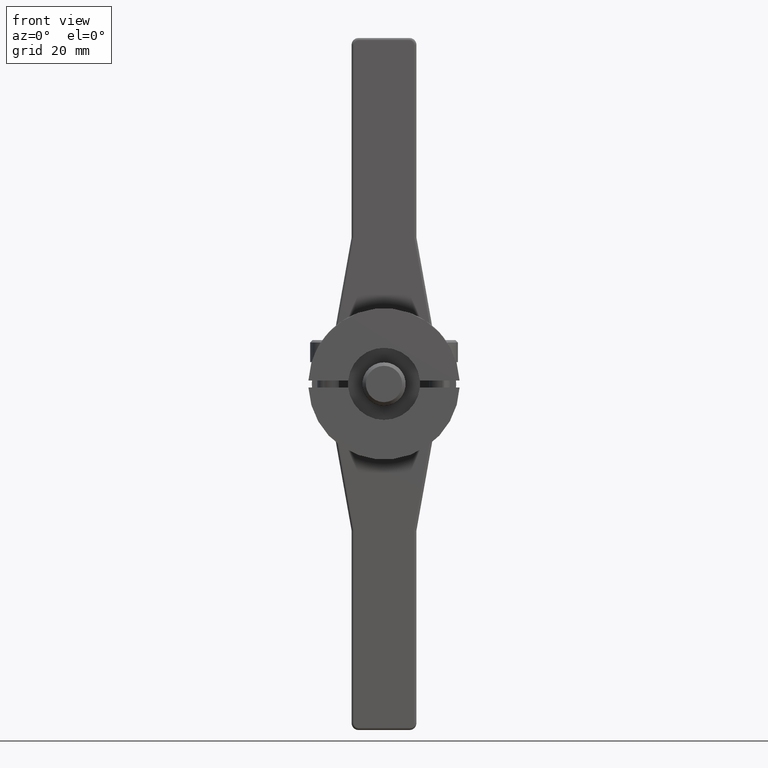
[diagram: clean part render]
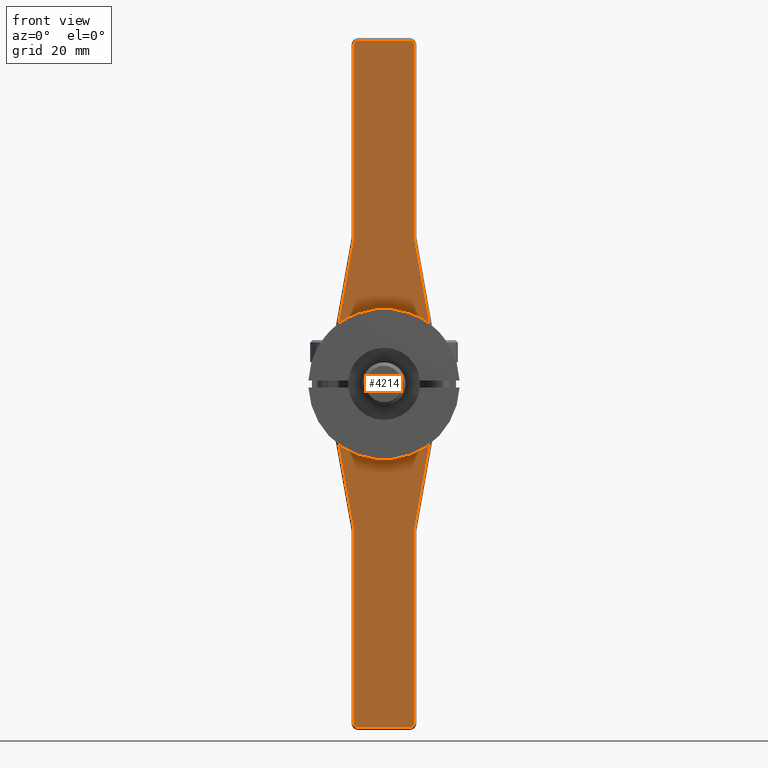
[diagram: same view with one face highlighted and labeled with its STEP entity id]
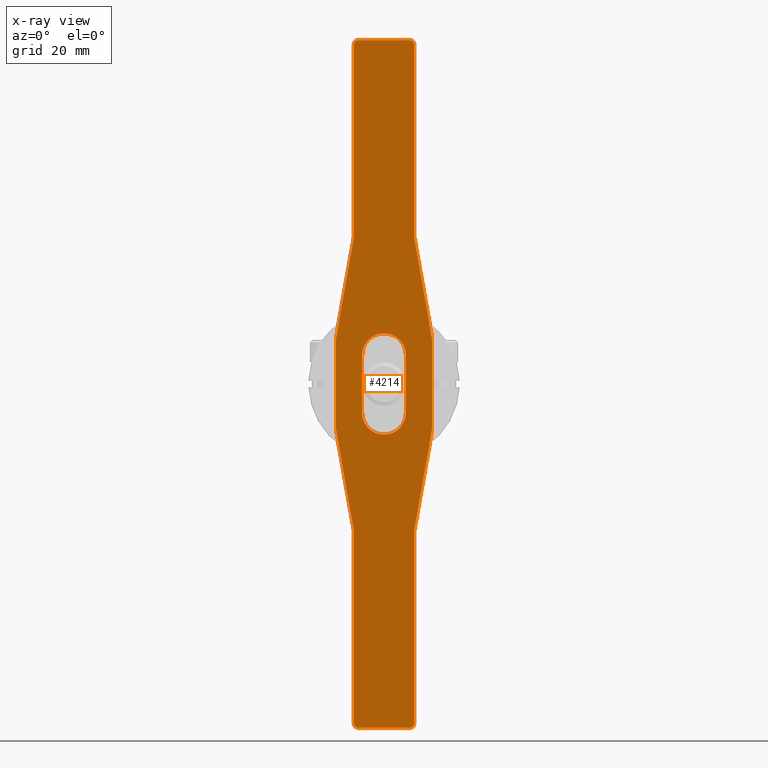
[diagram: x-ray of the same camera — body ghosted, the highlighted face saturated]
A machine part, front view. The second image highlights one B-rep face of the part: STEP entity #4214.
The next image is the same camera in x-ray: the body ghosted, the highlighted face saturated — about 0% of this face is hidden behind the body in this view.
In plain terms, the highlighted planar face has unit normal (0, 1, 0).
Its self-contained STEP definition (entity closure, byte-faithful):
#2586=CARTESIAN_POINT('',(0.E0,0.E0,-2.5E-1));
#2587=DIRECTION('',(0.E0,-1.E0,0.E0));
#2588=DIRECTION('',(-1.E0,0.E0,0.E0));
#2589=AXIS2_PLACEMENT_3D('',#2586,#2587,#2588);
#2595=DIRECTION('',(0.E0,0.E0,1.E0));
#2596=VECTOR('',#2595,5.E-1);
#2597=CARTESIAN_POINT('',(1.895E-1,0.E0,-2.5E-1));
#2598=LINE('',#2597,#2596);
#2602=CARTESIAN_POINT('',(0.E0,0.E0,2.5E-1));
#2603=DIRECTION('',(0.E0,-1.E0,0.E0));
#2604=DIRECTION('',(1.E0,0.E0,0.E0));
#2605=AXIS2_PLACEMENT_3D('',#2602,#2603,#2604);
#2610=DIRECTION('',(0.E0,0.E0,-1.E0));
#2611=VECTOR('',#2610,5.E-1);
#2612=CARTESIAN_POINT('',(-1.895E-1,0.E0,2.5E-1));
#2613=LINE('',#2612,#2611);
#2825=DIRECTION('',(-1.750707107547E-1,0.E0,-9.845558624252E-1));
#2826=VECTOR('',#2825,8.939245138454E-1);
#2827=CARTESIAN_POINT('',(-2.61E-1,0.E0,1.268235668604E0));
#2828=LINE('',#2827,#2826);
#2851=DIRECTION('',(0.E0,0.E0,-1.E0));
#2852=VECTOR('',#2851,7.762340958639E-1);
#2853=CARTESIAN_POINT('',(-4.175E-1,0.E0,3.881170479320E-1));
#2854=LINE('',#2853,#2852);
#2877=DIRECTION('',(1.750707107547E-1,0.E0,-9.845558624252E-1));
#2878=VECTOR('',#2877,8.939245138454E-1);
#2879=CARTESIAN_POINT('',(-4.175E-1,0.E0,-3.881170479320E-1));
#2880=LINE('',#2879,#2878);
#2903=DIRECTION('',(0.E0,0.E0,-1.E0));
#2904=VECTOR('',#2903,1.671764331396E0);
#2905=CARTESIAN_POINT('',(-2.61E-1,0.E0,-1.268235668604E0));
#2906=LINE('',#2905,#2904);
#2917=CARTESIAN_POINT('',(-2.21E-1,1.280260619740E-13,-2.94E0));
#2918=DIRECTION('',(0.E0,-1.E0,0.E0));
#2919=DIRECTION('',(-1.E0,0.E0,0.E0));
#2920=AXIS2_PLACEMENT_3D('',#2917,#2918,#2919);
#2941=DIRECTION('',(1.E0,0.E0,0.E0));
#2942=VECTOR('',#2941,4.42E-1);
#2943=CARTESIAN_POINT('',(-2.21E-1,0.E0,-2.98E0));
#2944=LINE('',#2943,#2942);
#2963=CARTESIAN_POINT('',(2.21E-1,1.280260619740E-13,-2.94E0));
#2964=DIRECTION('',(0.E0,-1.E0,0.E0));
#2965=DIRECTION('',(0.E0,0.E0,-1.E0));
#2966=AXIS2_PLACEMENT_3D('',#2963,#2964,#2965);
#2987=DIRECTION('',(0.E0,0.E0,1.E0));
#2988=VECTOR('',#2987,1.671764331396E0);
#2989=CARTESIAN_POINT('',(2.61E-1,0.E0,-2.94E0));
#2990=LINE('',#2989,#2988);
#3021=DIRECTION('',(1.750707107547E-1,0.E0,9.845558624252E-1));
#3022=VECTOR('',#3021,8.939245138454E-1);
#3023=CARTESIAN_POINT('',(2.61E-1,0.E0,-1.268235668604E0));
#3024=LINE('',#3023,#3022);
#3047=DIRECTION('',(0.E0,0.E0,1.E0));
#3048=VECTOR('',#3047,7.762340958639E-1);
#3049=CARTESIAN_POINT('',(4.175E-1,0.E0,-3.881170479320E-1));
#3050=LINE('',#3049,#3048);
#3073=DIRECTION('',(-1.750707107547E-1,0.E0,9.845558624252E-1));
#3074=VECTOR('',#3073,8.939245138454E-1);
#3075=CARTESIAN_POINT('',(4.175E-1,0.E0,3.881170479320E-1));
#3076=LINE('',#3075,#3074);
#3087=DIRECTION('',(0.E0,0.E0,1.E0));
#3088=VECTOR('',#3087,1.671764331396E0);
#3089=CARTESIAN_POINT('',(2.61E-1,0.E0,1.268235668604E0));
#3090=LINE('',#3089,#3088);
#3113=CARTESIAN_POINT('',(2.21E-1,1.280260619740E-13,2.94E0));
#3114=DIRECTION('',(0.E0,-1.E0,0.E0));
#3115=DIRECTION('',(1.E0,0.E0,0.E0));
#3116=AXIS2_PLACEMENT_3D('',#3113,#3114,#3115);
#3137=DIRECTION('',(-1.E0,0.E0,0.E0));
#3138=VECTOR('',#3137,4.42E-1);
#3139=CARTESIAN_POINT('',(2.21E-1,0.E0,2.98E0));
#3140=LINE('',#3139,#3138);
#3159=CARTESIAN_POINT('',(-2.21E-1,1.280260619740E-13,2.94E0));
#3160=DIRECTION('',(0.E0,-1.E0,0.E0));
#3161=DIRECTION('',(0.E0,0.E0,1.E0));
#3162=AXIS2_PLACEMENT_3D('',#3159,#3160,#3161);
#3183=DIRECTION('',(0.E0,0.E0,-1.E0));
#3184=VECTOR('',#3183,1.671764331396E0);
#3185=CARTESIAN_POINT('',(-2.61E-1,0.E0,2.94E0));
#3186=LINE('',#3185,#3184);
#3971=CARTESIAN_POINT('',(-1.895E-1,0.E0,-2.5E-1));
#3972=CARTESIAN_POINT('',(1.895E-1,0.E0,-2.5E-1));
#3973=VERTEX_POINT('',#3971);
#3974=VERTEX_POINT('',#3972);
#3975=CARTESIAN_POINT('',(1.895E-1,0.E0,2.5E-1));
#3976=VERTEX_POINT('',#3975);
#3977=CARTESIAN_POINT('',(-1.895E-1,0.E0,2.5E-1));
#3978=VERTEX_POINT('',#3977);
#4101=CARTESIAN_POINT('',(-2.61E-1,0.E0,2.94E0));
#4102=CARTESIAN_POINT('',(-2.61E-1,0.E0,1.268235668604E0));
#4103=VERTEX_POINT('',#4101);
#4104=VERTEX_POINT('',#4102);
#4109=CARTESIAN_POINT('',(-4.175E-1,0.E0,3.881170479320E-1));
#4110=VERTEX_POINT('',#4109);
#4113=CARTESIAN_POINT('',(-4.175E-1,0.E0,-3.881170479320E-1));
#4114=VERTEX_POINT('',#4113);
#4117=CARTESIAN_POINT('',(-2.61E-1,0.E0,-1.268235668604E0));
#4118=VERTEX_POINT('',#4117);
#4121=CARTESIAN_POINT('',(-2.61E-1,0.E0,-2.94E0));
#4122=VERTEX_POINT('',#4121);
#4125=CARTESIAN_POINT('',(-2.21E-1,1.280260619740E-13,-2.979999928443E0));
#4126=VERTEX_POINT('',#4125);
#4129=CARTESIAN_POINT('',(2.21E-1,0.E0,-2.98E0));
#4130=VERTEX_POINT('',#4129);
#4133=CARTESIAN_POINT('',(2.609999284434E-1,1.280260619740E-13,-2.94E0));
#4134=VERTEX_POINT('',#4133);
#4137=CARTESIAN_POINT('',(2.61E-1,0.E0,-1.268235668604E0));
#4138=VERTEX_POINT('',#4137);
#4141=CARTESIAN_POINT('',(4.175E-1,0.E0,-3.881170479320E-1));
#4142=VERTEX_POINT('',#4141);
#4145=CARTESIAN_POINT('',(4.175E-1,0.E0,3.881170479320E-1));
#4146=VERTEX_POINT('',#4145);
#4149=CARTESIAN_POINT('',(2.61E-1,0.E0,1.268235668604E0));
#4150=VERTEX_POINT('',#4149);
#4153=CARTESIAN_POINT('',(2.61E-1,0.E0,2.94E0));
#4154=VERTEX_POINT('',#4153);
#4157=CARTESIAN_POINT('',(2.21E-1,1.280260619740E-13,2.979999928443E0));
#4158=VERTEX_POINT('',#4157);
#4161=CARTESIAN_POINT('',(-2.21E-1,0.E0,2.98E0));
#4162=VERTEX_POINT('',#4161);
#4165=CARTESIAN_POINT('',(0.E0,0.E0,0.E0));
#4166=DIRECTION('',(0.E0,1.E0,0.E0));
#4167=DIRECTION('',(-1.E0,0.E0,0.E0));
#4168=AXIS2_PLACEMENT_3D('',#4165,#4166,#4167);
#4169=PLANE('',#4168);
#4171=ORIENTED_EDGE('',*,*,#4170,.F.);
#4173=ORIENTED_EDGE('',*,*,#4172,.F.);
#4175=ORIENTED_EDGE('',*,*,#4174,.F.);
#4177=ORIENTED_EDGE('',*,*,#4176,.F.);
#4179=ORIENTED_EDGE('',*,*,#4178,.F.);
#4181=ORIENTED_EDGE('',*,*,#4180,.F.);
#4183=ORIENTED_EDGE('',*,*,#4182,.F.);
#4185=ORIENTED_EDGE('',*,*,#4184,.F.);
#4187=ORIENTED_EDGE('',*,*,#4186,.F.);
#4189=ORIENTED_EDGE('',*,*,#4188,.F.);
#4191=ORIENTED_EDGE('',*,*,#4190,.F.);
#4193=ORIENTED_EDGE('',*,*,#4192,.F.);
#4195=ORIENTED_EDGE('',*,*,#4194,.F.);
#4197=ORIENTED_EDGE('',*,*,#4196,.F.);
#4199=ORIENTED_EDGE('',*,*,#4198,.F.);
#4201=ORIENTED_EDGE('',*,*,#4200,.F.);
#4202=EDGE_LOOP('',(#4171,#4173,#4175,#4177,#4179,#4181,#4183,#4185,#4187,#4189,
#4191,#4193,#4195,#4197,#4199,#4201));
#4203=FACE_OUTER_BOUND('',#4202,.F.);
#4205=ORIENTED_EDGE('',*,*,#4204,.T.);
#4207=ORIENTED_EDGE('',*,*,#4206,.T.);
#4209=ORIENTED_EDGE('',*,*,#4208,.T.);
#4211=ORIENTED_EDGE('',*,*,#4210,.T.);
#4212=EDGE_LOOP('',(#4205,#4207,#4209,#4211));
#4213=FACE_BOUND('',#4212,.F.);
#4214=ADVANCED_FACE('',(#4203,#4213),#4169,.F.);
#2590=CIRCLE('',#2589,1.895E-1);
#2606=CIRCLE('',#2605,1.895E-1);
#2921=CIRCLE('',#2920,3.999992844344E-2);
#2967=CIRCLE('',#2966,3.999992844344E-2);
#3117=CIRCLE('',#3116,3.999992844344E-2);
#3163=CIRCLE('',#3162,3.999992844344E-2);
#4170=EDGE_CURVE('',#4103,#4104,#3186,.T.);
#4172=EDGE_CURVE('',#4162,#4103,#3163,.T.);
#4174=EDGE_CURVE('',#4158,#4162,#3140,.T.);
#4176=EDGE_CURVE('',#4154,#4158,#3117,.T.);
#4178=EDGE_CURVE('',#4150,#4154,#3090,.T.);
#4180=EDGE_CURVE('',#4146,#4150,#3076,.T.);
#4182=EDGE_CURVE('',#4142,#4146,#3050,.T.);
#4184=EDGE_CURVE('',#4138,#4142,#3024,.T.);
#4186=EDGE_CURVE('',#4134,#4138,#2990,.T.);
#4188=EDGE_CURVE('',#4130,#4134,#2967,.T.);
#4190=EDGE_CURVE('',#4126,#4130,#2944,.T.);
#4192=EDGE_CURVE('',#4122,#4126,#2921,.T.);
#4194=EDGE_CURVE('',#4118,#4122,#2906,.T.);
#4196=EDGE_CURVE('',#4114,#4118,#2880,.T.);
#4198=EDGE_CURVE('',#4110,#4114,#2854,.T.);
#4200=EDGE_CURVE('',#4104,#4110,#2828,.T.);
#4204=EDGE_CURVE('',#3973,#3974,#2590,.T.);
#4206=EDGE_CURVE('',#3974,#3976,#2598,.T.);
#4208=EDGE_CURVE('',#3976,#3978,#2606,.T.);
#4210=EDGE_CURVE('',#3978,#3973,#2613,.T.);